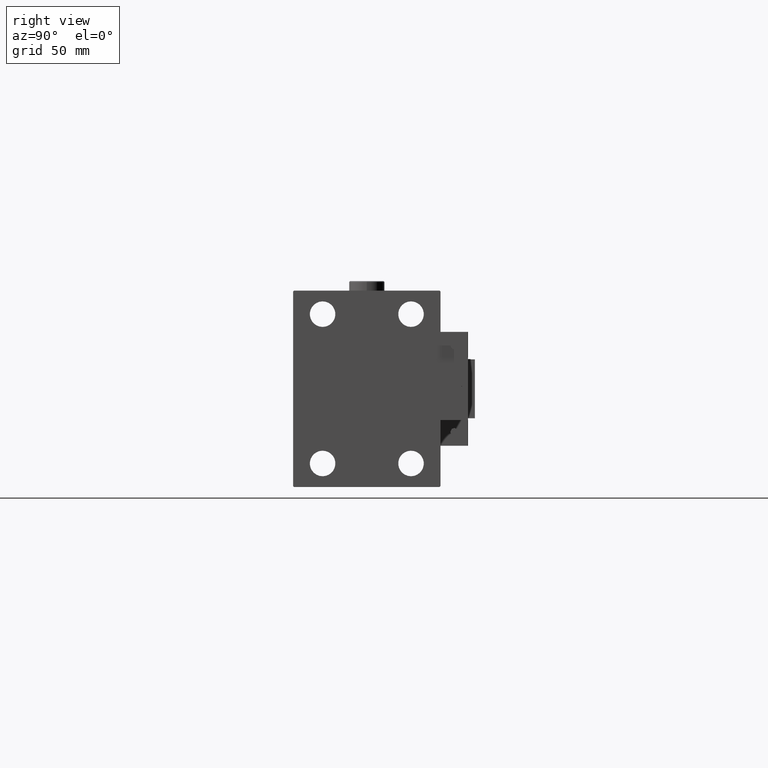
[diagram: clean part render]
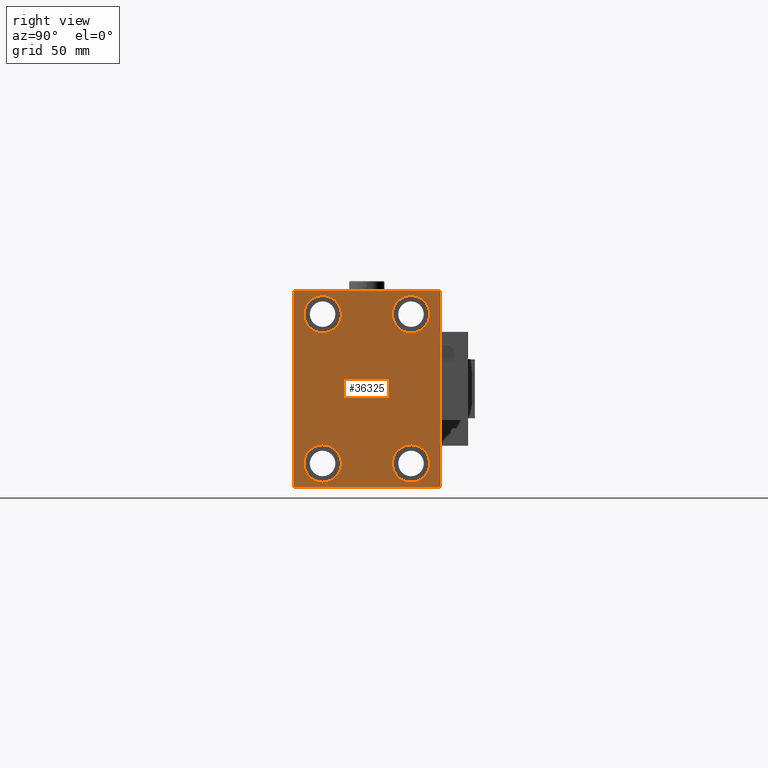
[diagram: same view with one face highlighted and labeled with its STEP entity id]
A machine part, right view. The second image highlights one B-rep face of the part: STEP entity #36325.
In plain terms, the highlighted planar face has unit normal (1, 0, 0).
Its self-contained STEP definition (entity closure, byte-faithful):
#77 = CARTESIAN_POINT ( 'NONE',  ( 193.0000000000000000, -37.50000000000000711, 49.49999999999996447 ) ) ;
#130 = DIRECTION ( 'NONE',  ( -1.000000000000000000, -0.000000000000000000, -0.000000000000000000 ) ) ;
#302 = DIRECTION ( 'NONE',  ( 0.000000000000000000, 0.000000000000000000, -1.000000000000000000 ) ) ;
#677 = DIRECTION ( 'NONE',  ( 0.000000000000000000, 0.000000000000000000, 1.000000000000000000 ) ) ;
#812 = VERTEX_POINT ( 'NONE', #9482 ) ;
#874 = ORIENTED_EDGE ( 'NONE', *, *, #31527, .T. ) ;
#968 = CARTESIAN_POINT ( 'NONE',  ( 193.0000000000000000, 37.50000000000000711, -49.50000000000000000 ) ) ;
#1124 = DIRECTION ( 'NONE',  ( 1.000000000000000000, 0.000000000000000000, 0.000000000000000000 ) ) ;
#1304 = ORIENTED_EDGE ( 'NONE', *, *, #14195, .T. ) ;
#1615 = CARTESIAN_POINT ( 'NONE',  ( 193.0000000000000000, -37.50000000000000711, -49.50000000000000711 ) ) ;
#1822 = CARTESIAN_POINT ( 'NONE',  ( 193.0000000000000000, -37.50000000000000711, -50.00000000000000711 ) ) ;
#1893 = EDGE_CURVE ( 'NONE', #47910, #812, #28611, .T. ) ;
#2074 = LINE ( 'NONE', #40650, #44316 ) ;
#2246 = ORIENTED_EDGE ( 'NONE', *, *, #7982, .T. ) ;
#2393 = VERTEX_POINT ( 'NONE', #33835 ) ;
#2468 = CIRCLE ( 'NONE', #26232, 9.500000000000001776 ) ;
#3472 = DIRECTION ( 'NONE',  ( -1.000000000000000000, -0.000000000000000000, -0.000000000000000000 ) ) ;
#4369 = LINE ( 'NONE', #17300, #45449 ) ;
#4441 = FACE_BOUND ( 'NONE', #37822, .T. ) ;
#5465 = EDGE_CURVE ( 'NONE', #6114, #32731, #2468, .T. ) ;
#5958 = LINE ( 'NONE', #1822, #40951 ) ;
#6114 = VERTEX_POINT ( 'NONE', #44145 ) ;
#6187 = AXIS2_PLACEMENT_3D ( 'NONE', #35357, #11877, #37248 ) ;
#6721 = DIRECTION ( 'NONE',  ( -1.000000000000000000, -0.000000000000000000, -0.000000000000000000 ) ) ;
#6809 = CARTESIAN_POINT ( 'NONE',  ( 193.0000000000000000, -22.50000000000000711, -47.49999999999999289 ) ) ;
#7160 = DIRECTION ( 'NONE',  ( -0.000000000000000000, 0.7071067811865474617, 0.7071067811865474617 ) ) ;
#7283 = DIRECTION ( 'NONE',  ( 0.000000000000000000, 0.000000000000000000, 1.000000000000000000 ) ) ;
#7430 = ORIENTED_EDGE ( 'NONE', *, *, #48916, .T. ) ;
#7982 = EDGE_CURVE ( 'NONE', #51526, #51300, #2074, .T. ) ;
#8049 = CIRCLE ( 'NONE', #27411, 9.500000000000001776 ) ;
#8140 = AXIS2_PLACEMENT_3D ( 'NONE', #51927, #47802, #677 ) ;
#8238 = ORIENTED_EDGE ( 'NONE', *, *, #35073, .T. ) ;
#9390 = FACE_OUTER_BOUND ( 'NONE', #12739, .T. ) ;
#9482 = CARTESIAN_POINT ( 'NONE',  ( 193.0000000000000000, -22.49999999999999645, 47.49999999999999289 ) ) ;
#9757 = ORIENTED_EDGE ( 'NONE', *, *, #12782, .T. ) ;
#11107 = LINE ( 'NONE', #11377, #51361 ) ;
#11377 = CARTESIAN_POINT ( 'NONE',  ( 193.0000000000000000, -37.50000000000000711, 49.99999999999999289 ) ) ;
#11869 = CARTESIAN_POINT ( 'NONE',  ( 193.0000000000000000, 37.49999999999999289, 49.50000000000000000 ) ) ;
#11877 = DIRECTION ( 'NONE',  ( -1.000000000000000000, -0.000000000000000000, -0.000000000000000000 ) ) ;
#11961 = EDGE_CURVE ( 'NONE', #2393, #21643, #49870, .T. ) ;
#12099 = CARTESIAN_POINT ( 'NONE',  ( 193.0000000000000000, -37.00000000000000711, -50.00000000000000711 ) ) ;
#12739 = EDGE_LOOP ( 'NONE', ( #32542, #36062, #7430, #2246, #43835, #42088, #1304, #19995 ) ) ;
#12782 = EDGE_CURVE ( 'NONE', #32731, #6114, #15428, .T. ) ;
#13098 = ORIENTED_EDGE ( 'NONE', *, *, #1893, .T. ) ;
#14038 = VERTEX_POINT ( 'NONE', #47413 ) ;
#14195 = EDGE_CURVE ( 'NONE', #34938, #45851, #4369, .T. ) ;
#15105 = EDGE_CURVE ( 'NONE', #812, #47910, #22596, .T. ) ;
#15428 = CIRCLE ( 'NONE', #36583, 9.500000000000001776 ) ;
#15838 = CIRCLE ( 'NONE', #6187, 9.500000000000001776 ) ;
#17300 = CARTESIAN_POINT ( 'NONE',  ( 193.0000000000000000, 37.50000000000000711, -50.00000000000000000 ) ) ;
#18106 = ORIENTED_EDGE ( 'NONE', *, *, #5465, .T. ) ;
#18208 = VERTEX_POINT ( 'NONE', #52951 ) ;
#19995 = ORIENTED_EDGE ( 'NONE', *, *, #40584, .T. ) ;
#21024 = CARTESIAN_POINT ( 'NONE',  ( 193.0000000000000000, 37.49999999999999289, 50.00000000000000711 ) ) ;
#21643 = VERTEX_POINT ( 'NONE', #77 ) ;
#22345 = CARTESIAN_POINT ( 'NONE',  ( 193.0000000000000000, 36.99999999999999289, 50.00000000000000711 ) ) ;
#22596 = CIRCLE ( 'NONE', #49848, 9.500000000000001776 ) ;
#22830 = EDGE_CURVE ( 'NONE', #23705, #34938, #31991, .T. ) ;
#23705 = VERTEX_POINT ( 'NONE', #35046 ) ;
#23772 = VERTEX_POINT ( 'NONE', #22345 ) ;
#23876 = ORIENTED_EDGE ( 'NONE', *, *, #26269, .T. ) ;
#25245 = CARTESIAN_POINT ( 'NONE',  ( 193.0000000000000000, 43.50000000000026290, 43.49999999999965894 ) ) ;
#26232 = AXIS2_PLACEMENT_3D ( 'NONE', #48680, #3472, #36835 ) ;
#26269 = EDGE_CURVE ( 'NONE', #46212, #14038, #15838, .T. ) ;
#26717 = DIRECTION ( 'NONE',  ( 0.000000000000000000, -1.000000000000000000, -1.850371707708594316E-16 ) ) ;
#26895 = VECTOR ( 'NONE', #37775, 1000.000000000000114 ) ;
#27411 = AXIS2_PLACEMENT_3D ( 'NONE', #31811, #6721, #52996 ) ;
#28611 = CIRCLE ( 'NONE', #38306, 9.500000000000001776 ) ;
#28942 = CARTESIAN_POINT ( 'NONE',  ( 193.0000000000000000, -43.49999999999998579, 43.49999999999998579 ) ) ;
#29085 = CARTESIAN_POINT ( 'NONE',  ( 193.0000000000000000, 22.50000000000000355, 37.99999999999999289 ) ) ;
#29743 = DIRECTION ( 'NONE',  ( 0.000000000000000000, 0.000000000000000000, 1.000000000000000000 ) ) ;
#29810 = PLANE ( 'NONE',  #44845 ) ;
#30187 = EDGE_LOOP ( 'NONE', ( #13098, #51286 ) ) ;
#30735 = CIRCLE ( 'NONE', #43900, 9.500000000000001776 ) ;
#31527 = EDGE_CURVE ( 'NONE', #38016, #18208, #31933, .T. ) ;
#31793 = DIRECTION ( 'NONE',  ( 0.000000000000000000, 0.000000000000000000, -1.000000000000000000 ) ) ;
#31811 = CARTESIAN_POINT ( 'NONE',  ( 193.0000000000000000, 22.49999999999999645, -37.99999999999999289 ) ) ;
#31933 = CIRCLE ( 'NONE', #8140, 9.500000000000001776 ) ;
#31991 = LINE ( 'NONE', #48773, #37756 ) ;
#32542 = ORIENTED_EDGE ( 'NONE', *, *, #40042, .T. ) ;
#32731 = VERTEX_POINT ( 'NONE', #40106 ) ;
#33835 = CARTESIAN_POINT ( 'NONE',  ( 193.0000000000000000, -36.99999999999997868, 49.99999999999999289 ) ) ;
#34938 = VERTEX_POINT ( 'NONE', #968 ) ;
#35046 = CARTESIAN_POINT ( 'NONE',  ( 193.0000000000000000, 37.00000000000000711, -50.00000000000000000 ) ) ;
#35073 = EDGE_CURVE ( 'NONE', #14038, #46212, #30735, .T. ) ;
#35341 = VECTOR ( 'NONE', #26717, 1000.000000000000000 ) ;
#35357 = CARTESIAN_POINT ( 'NONE',  ( 193.0000000000000000, -22.50000000000000711, -37.99999999999999289 ) ) ;
#35681 = DIRECTION ( 'NONE',  ( -1.000000000000000000, -0.000000000000000000, -0.000000000000000000 ) ) ;
#36062 = ORIENTED_EDGE ( 'NONE', *, *, #11961, .T. ) ;
#36325 = ADVANCED_FACE ( 'NONE', ( #50462, #42202, #4441, #38087, #9390 ), #29810, .T. ) ;
#36583 = AXIS2_PLACEMENT_3D ( 'NONE', #29085, #130, #50836 ) ;
#36769 = ORIENTED_EDGE ( 'NONE', *, *, #44633, .T. ) ;
#36835 = DIRECTION ( 'NONE',  ( 0.000000000000000000, 0.000000000000000000, 1.000000000000000000 ) ) ;
#37248 = DIRECTION ( 'NONE',  ( 0.000000000000000000, 0.000000000000000000, 1.000000000000000000 ) ) ;
#37756 = VECTOR ( 'NONE', #7160, 1000.000000000000114 ) ;
#37775 = DIRECTION ( 'NONE',  ( 0.000000000000000000, -0.7071067811865474617, -0.7071067811865474617 ) ) ;
#37822 = EDGE_LOOP ( 'NONE', ( #9757, #18106 ) ) ;
#38016 = VERTEX_POINT ( 'NONE', #48743 ) ;
#38022 = CARTESIAN_POINT ( 'NONE',  ( 193.0000000000000000, -22.49999999999999645, 37.99999999999999289 ) ) ;
#38087 = FACE_BOUND ( 'NONE', #53901, .T. ) ;
#38306 = AXIS2_PLACEMENT_3D ( 'NONE', #47529, #35681, #52474 ) ;
#39747 = VECTOR ( 'NONE', #41231, 999.9999999999998863 ) ;
#40042 = EDGE_CURVE ( 'NONE', #23772, #2393, #50502, .T. ) ;
#40106 = CARTESIAN_POINT ( 'NONE',  ( 193.0000000000000000, 22.50000000000000355, 28.49999999999998934 ) ) ;
#40584 = EDGE_CURVE ( 'NONE', #45851, #23772, #49753, .T. ) ;
#40650 = CARTESIAN_POINT ( 'NONE',  ( 193.0000000000000000, -43.50000000000000711, -43.50000000000000711 ) ) ;
#40951 = VECTOR ( 'NONE', #53324, 1000.000000000000000 ) ;
#41231 = DIRECTION ( 'NONE',  ( -0.000000000000000000, -0.7071067811865425767, 0.7071067811865525687 ) ) ;
#41677 = EDGE_LOOP ( 'NONE', ( #874, #36769 ) ) ;
#42088 = ORIENTED_EDGE ( 'NONE', *, *, #22830, .T. ) ;
#42202 = FACE_BOUND ( 'NONE', #30187, .T. ) ;
#43014 = CARTESIAN_POINT ( 'NONE',  ( 193.0000000000000000, 0.000000000000000000, 0.000000000000000000 ) ) ;
#43835 = ORIENTED_EDGE ( 'NONE', *, *, #51779, .T. ) ;
#43900 = AXIS2_PLACEMENT_3D ( 'NONE', #45027, #49967, #7283 ) ;
#44145 = CARTESIAN_POINT ( 'NONE',  ( 193.0000000000000000, 22.50000000000000355, 47.49999999999999289 ) ) ;
#44316 = VECTOR ( 'NONE', #44765, 1000.000000000000114 ) ;
#44633 = EDGE_CURVE ( 'NONE', #18208, #38016, #8049, .T. ) ;
#44765 = DIRECTION ( 'NONE',  ( -0.000000000000000000, 0.7071067811865474617, -0.7071067811865474617 ) ) ;
#44845 = AXIS2_PLACEMENT_3D ( 'NONE', #43014, #1124, #302 ) ;
#45027 = CARTESIAN_POINT ( 'NONE',  ( 193.0000000000000000, -22.50000000000000711, -37.99999999999999289 ) ) ;
#45449 = VECTOR ( 'NONE', #51199, 1000.000000000000000 ) ;
#45851 = VERTEX_POINT ( 'NONE', #11869 ) ;
#46212 = VERTEX_POINT ( 'NONE', #6809 ) ;
#47413 = CARTESIAN_POINT ( 'NONE',  ( 193.0000000000000000, -22.50000000000000711, -28.49999999999998934 ) ) ;
#47529 = CARTESIAN_POINT ( 'NONE',  ( 193.0000000000000000, -22.49999999999999645, 37.99999999999999289 ) ) ;
#47802 = DIRECTION ( 'NONE',  ( -1.000000000000000000, -0.000000000000000000, -0.000000000000000000 ) ) ;
#47910 = VERTEX_POINT ( 'NONE', #48305 ) ;
#48305 = CARTESIAN_POINT ( 'NONE',  ( 193.0000000000000000, -22.49999999999999645, 28.49999999999998934 ) ) ;
#48680 = CARTESIAN_POINT ( 'NONE',  ( 193.0000000000000000, 22.50000000000000355, 37.99999999999999289 ) ) ;
#48743 = CARTESIAN_POINT ( 'NONE',  ( 193.0000000000000000, 22.49999999999999645, -47.49999999999999289 ) ) ;
#48773 = CARTESIAN_POINT ( 'NONE',  ( 193.0000000000000000, 43.50000000000000711, -43.50000000000000711 ) ) ;
#48916 = EDGE_CURVE ( 'NONE', #21643, #51526, #11107, .T. ) ;
#49753 = LINE ( 'NONE', #25245, #39747 ) ;
#49848 = AXIS2_PLACEMENT_3D ( 'NONE', #38022, #50944, #29743 ) ;
#49870 = LINE ( 'NONE', #28942, #26895 ) ;
#49967 = DIRECTION ( 'NONE',  ( -1.000000000000000000, -0.000000000000000000, -0.000000000000000000 ) ) ;
#50462 = FACE_BOUND ( 'NONE', #41677, .T. ) ;
#50502 = LINE ( 'NONE', #21024, #35341 ) ;
#50836 = DIRECTION ( 'NONE',  ( 0.000000000000000000, 0.000000000000000000, 1.000000000000000000 ) ) ;
#50944 = DIRECTION ( 'NONE',  ( -1.000000000000000000, -0.000000000000000000, -0.000000000000000000 ) ) ;
#51199 = DIRECTION ( 'NONE',  ( 0.000000000000000000, -1.387778780781445676E-16, 1.000000000000000000 ) ) ;
#51286 = ORIENTED_EDGE ( 'NONE', *, *, #15105, .T. ) ;
#51300 = VERTEX_POINT ( 'NONE', #12099 ) ;
#51361 = VECTOR ( 'NONE', #31793, 1000.000000000000000 ) ;
#51526 = VERTEX_POINT ( 'NONE', #1615 ) ;
#51779 = EDGE_CURVE ( 'NONE', #51300, #23705, #5958, .T. ) ;
#51927 = CARTESIAN_POINT ( 'NONE',  ( 193.0000000000000000, 22.49999999999999645, -37.99999999999999289 ) ) ;
#52474 = DIRECTION ( 'NONE',  ( 0.000000000000000000, 0.000000000000000000, 1.000000000000000000 ) ) ;
#52951 = CARTESIAN_POINT ( 'NONE',  ( 193.0000000000000000, 22.49999999999999645, -28.49999999999998934 ) ) ;
#52996 = DIRECTION ( 'NONE',  ( 0.000000000000000000, 0.000000000000000000, 1.000000000000000000 ) ) ;
#53324 = DIRECTION ( 'NONE',  ( 0.000000000000000000, 1.000000000000000000, 9.251858538542970348E-17 ) ) ;
#53901 = EDGE_LOOP ( 'NONE', ( #23876, #8238 ) ) ;